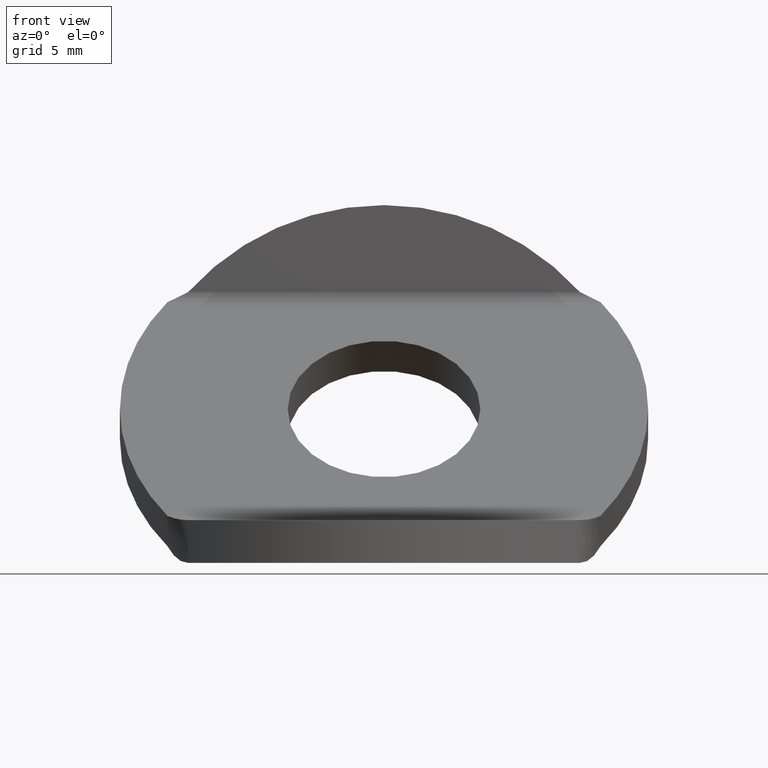
[diagram: clean part render]
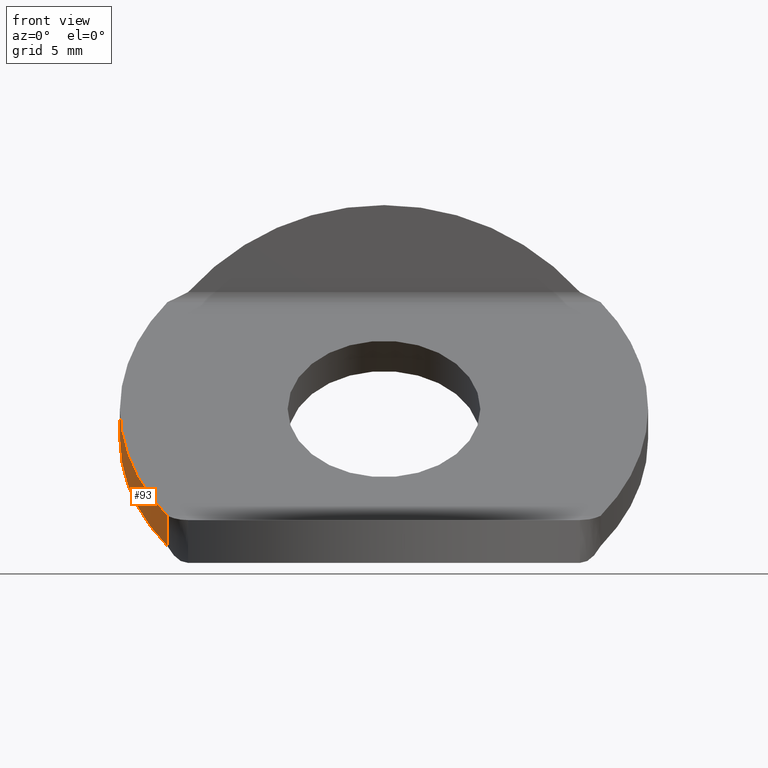
[diagram: same view with one face highlighted and labeled with its STEP entity id]
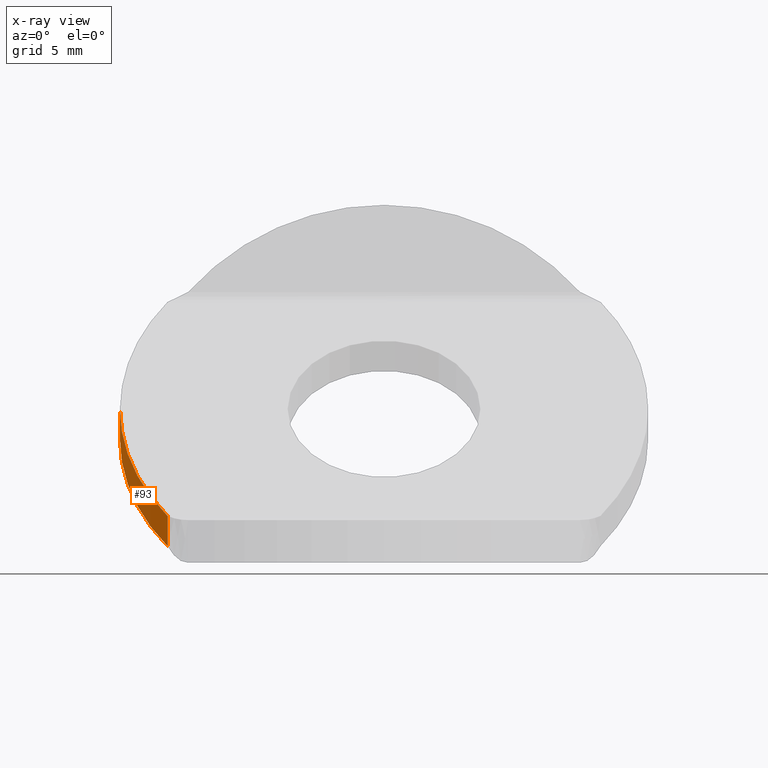
[diagram: x-ray of the same camera — body ghosted, the highlighted face saturated]
A machine part, front view. The second image highlights one B-rep face of the part: STEP entity #93.
The next image is the same camera in x-ray: the body ghosted, the highlighted face saturated — about 0% of this face is hidden behind the body in this view.
In plain terms, the highlighted cylindrical surface (partial cylindrical patch) has radius 18.5 mm, axis along (0, -0.7071, 0.7071).
Its self-contained STEP definition (entity closure, byte-faithful):
#44=CARTESIAN_POINT('',(20.661411872736263,2.948211912607984,8.659082832866146));
#45=DIRECTION('',(2.166933E-016,-0.707106781186548,0.707106781186547));
#46=DIRECTION('',(-1.0,0.0,0.0));
#47=AXIS2_PLACEMENT_3D('',#44,#45,#46);
#48=CYLINDRICAL_SURFACE('',#47,18.500000000000000);
#49=CARTESIAN_POINT('',(2.161411872736263,2.948211912607985,8.659082832866151));
#50=VERTEX_POINT('',#49);
#51=CARTESIAN_POINT('',(2.161411872736263,0.826891569048342,10.780403176425793));
#52=VERTEX_POINT('',#51);
#53=CARTESIAN_POINT('',(2.161411872736263,2.948211912607985,8.659082832866151));
#54=DIRECTION('',(0.0,-0.707106781186548,0.707106781186547));
#55=VECTOR('',#54,3.000000000000000);
#56=LINE('',#53,#55);
#57=EDGE_CURVE('',#50,#52,#56,.T.);
#58=ORIENTED_EDGE('',*,*,#57,.F.);
#59=CARTESIAN_POINT('',(5.491560546196766,-4.539298045004353,1.171572875253811));
#60=VERTEX_POINT('',#59);
#61=CARTESIAN_POINT('',(20.661411872736263,2.948211912607984,8.659082832866146));
#62=DIRECTION('',(0.0,0.707106781186548,-0.707106781186547));
#63=DIRECTION('',(-1.0,0.0,0.0));
#64=AXIS2_PLACEMENT_3D('',#61,#62,#63);
#65=CIRCLE('',#64,18.500000000000000);
#66=EDGE_CURVE('',#60,#50,#65,.T.);
#67=ORIENTED_EDGE('',*,*,#66,.F.);
#68=CARTESIAN_POINT('',(5.491560546196769,-5.725246501532524,2.357521331781973));
#69=VERTEX_POINT('',#68);
#70=CARTESIAN_POINT('',(5.491560546196766,-4.539298045004353,1.171572875253811));
#71=DIRECTION('',(1.588695E-015,-0.707106781186551,0.707106781186545));
#72=VECTOR('',#71,1.677184391497572);
#73=LINE('',#70,#72);
#74=EDGE_CURVE('',#60,#69,#73,.T.);
#75=ORIENTED_EDGE('',*,*,#74,.T.);
#76=CARTESIAN_POINT('',(5.491560546196767,-6.660618388563996,3.292893218813454));
#77=VERTEX_POINT('',#76);
#78=CARTESIAN_POINT('',(5.491560546196769,-5.725246501532524,2.357521331781973));
#79=DIRECTION('',(-1.342861E-015,-0.707106781186544,0.707106781186551));
#80=VECTOR('',#79,1.322815608502428);
#81=LINE('',#78,#80);
#82=EDGE_CURVE('',#69,#77,#81,.T.);
#83=ORIENTED_EDGE('',*,*,#82,.T.);
#84=CARTESIAN_POINT('',(20.661411872736263,0.826891569048342,10.780403176425787));
#85=DIRECTION('',(0.0,0.707106781186548,-0.707106781186547));
#86=DIRECTION('',(-1.0,0.0,0.0));
#87=AXIS2_PLACEMENT_3D('',#84,#85,#86);
#88=CIRCLE('',#87,18.500000000000000);
#89=EDGE_CURVE('',#77,#52,#88,.T.);
#90=ORIENTED_EDGE('',*,*,#89,.T.);
#91=EDGE_LOOP('',(#58,#67,#75,#83,#90));
#92=FACE_OUTER_BOUND('',#91,.T.);
#93=ADVANCED_FACE('',(#92),#48,.T.);